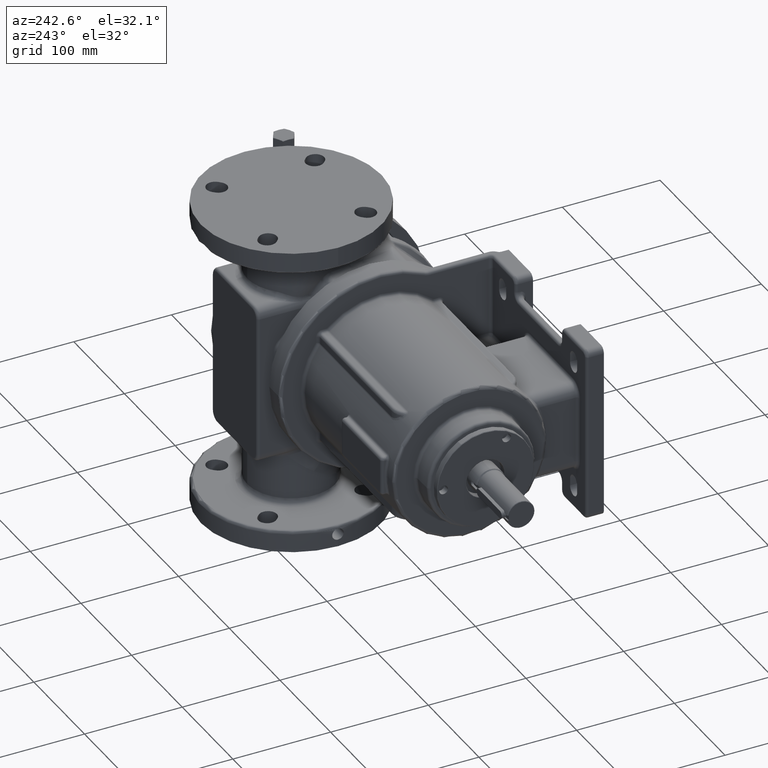
[diagram: clean part render]
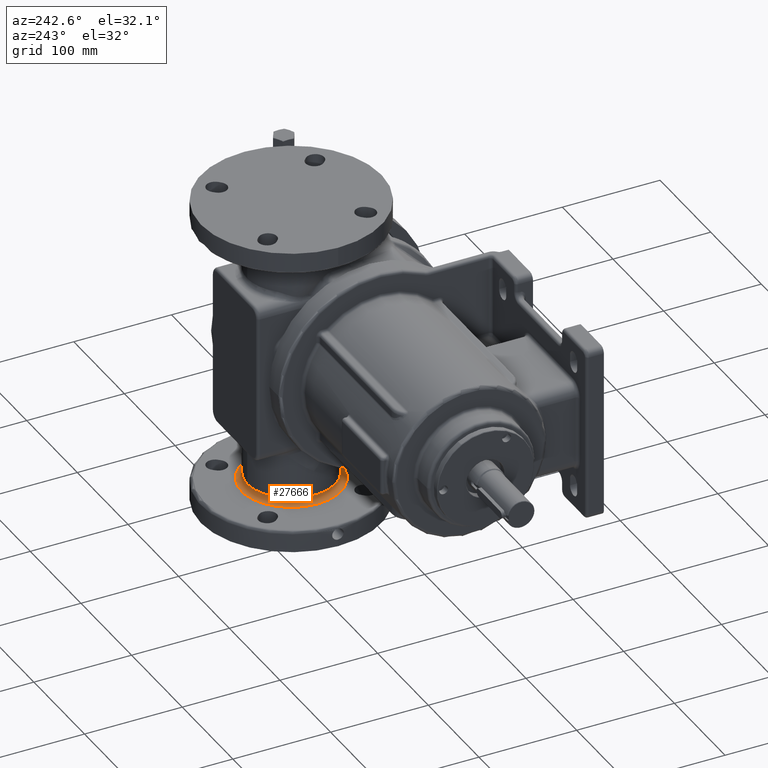
[diagram: same view with one face highlighted and labeled with its STEP entity id]
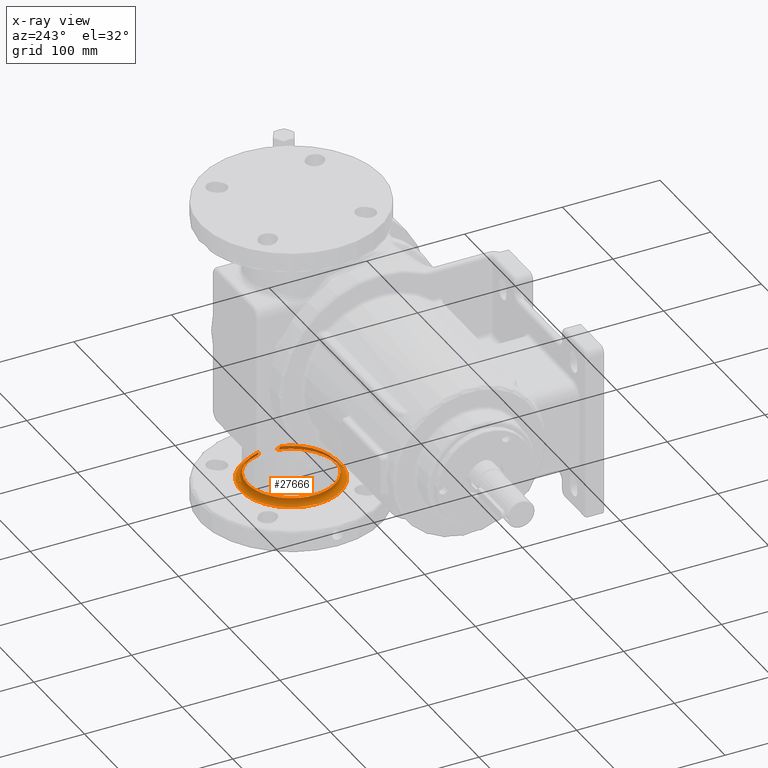
[diagram: x-ray of the same camera — body ghosted, the highlighted face saturated]
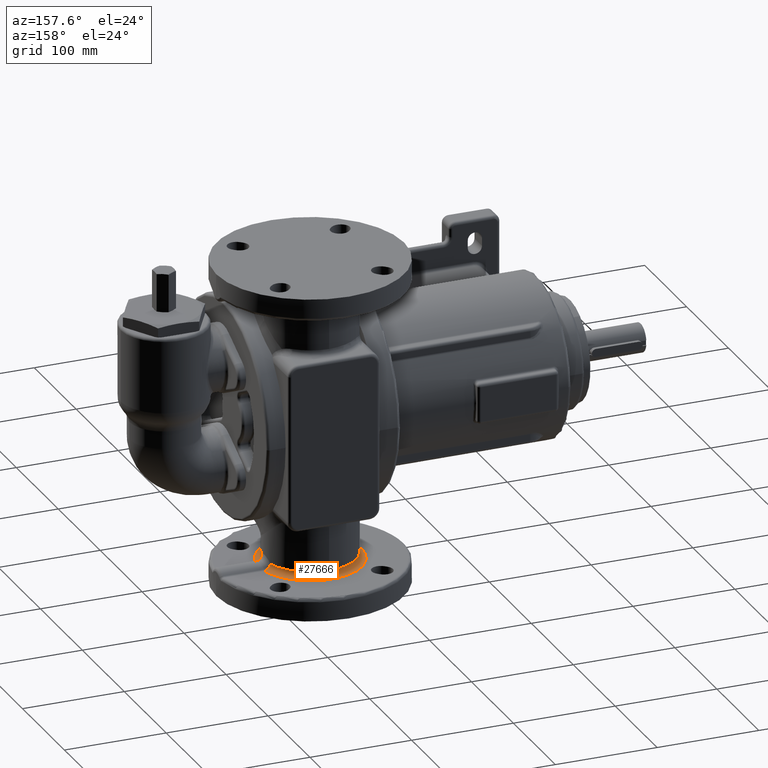
[diagram: same view with one face highlighted and labeled with its STEP entity id]
A machine part, auxiliary view. The second image highlights one B-rep face of the part: STEP entity #27666.
The next image is the same camera in x-ray: the body ghosted, the highlighted face saturated — about 14% of this face is hidden behind the body in this view.
A second angle (auxiliary view) of the same face is appended — the face is thin or edge-on in the first view.
In plain terms, the highlighted toroidal blend (fillet) surface has major radius 51 mm and minor (blend) radius 6 mm.
Its self-contained STEP definition (entity closure, byte-faithful):
#7389=CARTESIAN_POINT('',(5.75E1,5.5E1,-1.32E2));
#7390=DIRECTION('',(0.E0,0.E0,1.E0));
#7391=DIRECTION('',(0.E0,1.E0,0.E0));
#7392=AXIS2_PLACEMENT_3D('',#7389,#7390,#7391);
#7422=CARTESIAN_POINT('',(5.75E1,5.5E1,-1.38E2));
#7423=DIRECTION('',(0.E0,0.E0,-1.E0));
#7424=DIRECTION('',(9.756749180723E-1,-2.192223853638E-1,0.E0));
#7425=AXIS2_PLACEMENT_3D('',#7422,#7423,#7424);
#7548=CARTESIAN_POINT('',(1.061932992830E2,4.398203216310E1,-1.379027799623E2));
#7549=CARTESIAN_POINT('',(1.062627182263E2,4.396839121034E1,-1.379156678420E2));
#7550=CARTESIAN_POINT('',(1.064023265745E2,4.394222403452E1,-1.379389100157E2));
#7551=CARTESIAN_POINT('',(1.066140035961E2,4.390627064213E1,-1.379661385661E2));
#7552=CARTESIAN_POINT('',(1.068275472812E2,4.387373323175E1,-1.379856454731E2));
#7553=CARTESIAN_POINT('',(1.070427276856E2,4.384463151926E1,-1.379973843932E2));
#7554=CARTESIAN_POINT('',(1.071870689678E2,4.382759377144E1,-1.379999995492E2));
#7555=CARTESIAN_POINT('',(1.072594178540E2,4.381966546161E1,-1.379999998845E2));
#7729=CARTESIAN_POINT('',(1.072594181649E2,6.618033597942E1,-1.379999999395E2));
#7730=CARTESIAN_POINT('',(1.071870632168E2,6.617240589196E1,-1.379999996525E2));
#7731=CARTESIAN_POINT('',(1.070427124154E2,6.615536568869E1,-1.379973838963E2));
#7732=CARTESIAN_POINT('',(1.068275230448E2,6.612626347751E1,-1.379856439052E2));
#7733=CARTESIAN_POINT('',(1.066139793206E2,6.609372542627E1,-1.379661353823E2));
#7734=CARTESIAN_POINT('',(1.064023491122E2,6.605778026330E1,-1.379389134885E2));
#7735=CARTESIAN_POINT('',(1.062627233765E2,6.603160938309E1,-1.379156680074E2));
#7736=CARTESIAN_POINT('',(1.061933404925E2,6.601797562899E1,-1.379027876033E2));
#7780=CARTESIAN_POINT('',(1.061933404925E2,6.601797562899E1,-1.379027876033E2));
#7781=CARTESIAN_POINT('',(1.061132947112E2,6.600224710052E1,-1.378879276066E2));
#7782=CARTESIAN_POINT('',(1.059536265889E2,6.597162272904E1,-1.378548253291E2));
#7783=CARTESIAN_POINT('',(1.057156884023E2,6.592822365491E1,-1.377950673051E2));
#7784=CARTESIAN_POINT('',(1.054797544829E2,6.588739617604E1,-1.377252900961E2));
#7785=CARTESIAN_POINT('',(1.052461708444E2,6.584921023528E1,-1.376455722708E2));
#7786=CARTESIAN_POINT('',(1.050152984479E2,6.581368015801E1,-1.375559982714E2));
#7787=CARTESIAN_POINT('',(1.047875513572E2,6.578088227455E1,-1.374566902504E2));
#7788=CARTESIAN_POINT('',(1.045633658254E2,6.575082369029E1,-1.373477958358E2));
#7789=CARTESIAN_POINT('',(1.043431229901E2,6.572358071619E1,-1.372294654716E2));
#7790=CARTESIAN_POINT('',(1.041272053607E2,6.569914154999E1,-1.371018550499E2));
#7791=CARTESIAN_POINT('',(1.039160003594E2,6.567758079543E1,-1.369651515797E2));
#7792=CARTESIAN_POINT('',(1.037099103825E2,6.565887847249E1,-1.368195597832E2));
#7793=CARTESIAN_POINT('',(1.035093124679E2,6.564310622638E1,-1.366653042891E2));
#7794=CARTESIAN_POINT('',(1.033145891870E2,6.563023385900E1,-1.365026191555E2));
#7795=CARTESIAN_POINT('',(1.031261055073E2,6.562032753461E1,-1.363317662330E2));
#7796=CARTESIAN_POINT('',(1.029442333663E2,6.561334926558E1,-1.361530187184E2));
#7797=CARTESIAN_POINT('',(1.027693206083E2,6.560935869050E1,-1.359666764597E2));
#7798=CARTESIAN_POINT('',(1.026017181780E2,6.560831043702E1,-1.357730468518E2));
#7799=CARTESIAN_POINT('',(1.024417520346E2,6.561025662414E1,-1.355724664123E2));
#7800=CARTESIAN_POINT('',(1.022897504817E2,6.561514486694E1,-1.353652789339E2));
#7801=CARTESIAN_POINT('',(1.021460117242E2,6.562301890277E1,-1.351518551040E2));
#7802=CARTESIAN_POINT('',(1.020108320686E2,6.563381973502E1,-1.349325663163E2));
#7803=CARTESIAN_POINT('',(1.018844785871E2,6.564758279665E1,-1.347078149201E2));
#7804=CARTESIAN_POINT('',(1.017672191145E2,6.566424245379E1,-1.344780100344E2));
#7805=CARTESIAN_POINT('',(1.016592841745E2,6.568382226644E1,-1.342435822483E2));
#7806=CARTESIAN_POINT('',(1.015608963813E2,6.570625201848E1,-1.340049497907E2));
#7807=CARTESIAN_POINT('',(1.014722459475E2,6.573154959060E1,-1.337625619008E2));
#7808=CARTESIAN_POINT('',(1.013935225620E2,6.575963890164E1,-1.335168750211E2));
#7809=CARTESIAN_POINT('',(1.013248791341E2,6.579051167181E1,-1.332683647737E2));
#7810=CARTESIAN_POINT('',(1.012664599182E2,6.582408940084E1,-1.330175077647E2));
#7811=CARTESIAN_POINT('',(1.012183639882E2,6.586037882673E1,-1.327647957595E2));
#7812=CARTESIAN_POINT('',(1.011806896729E2,6.589927365307E1,-1.325106743284E2));
#7813=CARTESIAN_POINT('',(1.011534928418E2,6.594074944933E1,-1.322556245201E2));
#7814=CARTESIAN_POINT('',(1.011423801530E2,6.597009595730E1,-1.320851503292E2));
#7815=CARTESIAN_POINT('',(1.011385714870E2,6.598521963717E1,-1.319999448963E2));
#7817=CARTESIAN_POINT('',(1.011385733308E2,4.401478765545E1,-1.319999477205E2));
#7868=CARTESIAN_POINT('',(1.011385714870E2,6.598521963717E1,-1.319999448963E2));
#7870=CARTESIAN_POINT('',(5.75E1,5.5E1,-1.32E2));
#7871=DIRECTION('',(0.E0,0.E0,1.E0));
#7872=DIRECTION('',(0.E0,-1.E0,0.E0));
#7873=AXIS2_PLACEMENT_3D('',#7870,#7871,#7872);
#7903=CARTESIAN_POINT('',(5.75E1,5.5E1,-1.32E2));
#7904=DIRECTION('',(0.E0,0.E0,1.E0));
#7905=DIRECTION('',(9.697462613774E-1,2.441151133064E-1,0.E0));
#7906=AXIS2_PLACEMENT_3D('',#7903,#7904,#7905);
#15876=CARTESIAN_POINT('',(1.011385733308E2,4.401478765545E1,
-1.319999477205E2));
#15877=CARTESIAN_POINT('',(1.011423816420E2,4.402990965747E1,
-1.320851540814E2));
#15878=CARTESIAN_POINT('',(1.011534918319E2,4.405924627500E1,
-1.322556253257E2));
#15879=CARTESIAN_POINT('',(1.011806894082E2,4.410072500494E1,
-1.325106752226E2));
#15880=CARTESIAN_POINT('',(1.012183636882E2,4.413961930494E1,
-1.327647971005E2));
#15881=CARTESIAN_POINT('',(1.012664600068E2,4.417590915605E1,
-1.330175103602E2));
#15882=CARTESIAN_POINT('',(1.013248794356E2,4.420948698155E1,
-1.332683676028E2));
#15883=CARTESIAN_POINT('',(1.013935229384E2,4.424035984302E1,
-1.335168775545E2));
#15884=CARTESIAN_POINT('',(1.014722464863E2,4.426844932095E1,
-1.337625644567E2));
#15885=CARTESIAN_POINT('',(1.015608971849E2,4.429374706886E1,
-1.340049526143E2));
#15886=CARTESIAN_POINT('',(1.016592852326E2,4.431617703400E1,
-1.342435852128E2));
#15887=CARTESIAN_POINT('',(1.017672203910E2,4.433575704010E1,
-1.344780130361E2));
#15888=CARTESIAN_POINT('',(1.018844800882E2,4.435241691581E1,
-1.347078179429E2));
#15889=CARTESIAN_POINT('',(1.020108337987E2,4.436618019018E1,
-1.349325693545E2));
#15890=CARTESIAN_POINT('',(1.021460136712E2,4.437698120287E1,
-1.351518581355E2));
#15891=CARTESIAN_POINT('',(1.022897526223E2,4.438485536059E1,
-1.353652819337E2));
#15892=CARTESIAN_POINT('',(1.024417543605E2,4.438974367595E1,
-1.355724693768E2));
#15893=CARTESIAN_POINT('',(1.026017206831E2,4.439168987425E1,
-1.357730497819E2));
#15894=CARTESIAN_POINT('',(1.027693232770E2,4.439064159346E1,
-1.359666793378E2));
#15895=CARTESIAN_POINT('',(1.029442361924E2,4.438665096775E1,
-1.361530215359E2));
#15896=CARTESIAN_POINT('',(1.031261085036E2,4.437967262727E1,
-1.363317689986E2));
#15897=CARTESIAN_POINT('',(1.033145923666E2,4.436976622365E1,
-1.365026218707E2));
#15898=CARTESIAN_POINT('',(1.035093158049E2,4.435689376725E1,
-1.366653069225E2));
#15899=CARTESIAN_POINT('',(1.037099138582E2,4.434112143631E1,
-1.368195623136E2));
#15900=CARTESIAN_POINT('',(1.039160040759E2,4.432241901388E1,
-1.369651540731E2));
#15901=CARTESIAN_POINT('',(1.041272094199E2,4.430085815181E1,
-1.371018575462E2));
#15902=CARTESIAN_POINT('',(1.043431271039E2,4.427641890276E1,
-1.372294677717E2));
#15903=CARTESIAN_POINT('',(1.045633696121E2,4.424917590467E1,
-1.373477977596E2));
#15904=CARTESIAN_POINT('',(1.047875555292E2,4.421911720805E1,
-1.374566921781E2));
#15905=CARTESIAN_POINT('',(1.050153040570E2,4.418631905735E1,
-1.375560006156E2));
#15906=CARTESIAN_POINT('',(1.052461777109E2,4.415078868851E1,
-1.376455747296E2));
#15907=CARTESIAN_POINT('',(1.054797588489E2,4.411260311530E1,
-1.377252915522E2));
#15908=CARTESIAN_POINT('',(1.057156903121E2,4.407177590241E1,
-1.377950673726E2));
#15909=CARTESIAN_POINT('',(1.059535971460E2,4.402838283121E1,
-1.378548188371E2));
#15910=CARTESIAN_POINT('',(1.061132873813E2,4.399775417605E1,
-1.378879255796E2));
#15911=CARTESIAN_POINT('',(1.061932992830E2,4.398203216310E1,
-1.379027799623E2));
#17291=VERTEX_POINT('',#7817);
#17292=VERTEX_POINT('',#7868);
#17295=CARTESIAN_POINT('',(5.75E1,1.E1,-1.32E2));
#17296=VERTEX_POINT('',#17295);
#17297=CARTESIAN_POINT('',(5.75E1,1.E2,-1.32E2));
#17298=VERTEX_POINT('',#17297);
#17299=CARTESIAN_POINT('',(1.072594211556E2,6.618033988750E1,-1.38E2));
#17301=VERTEX_POINT('',#17299);
#17304=CARTESIAN_POINT('',(1.072594210998E2,4.381966011250E1,-1.38E2));
#17305=VERTEX_POINT('',#17304);
#17325=CARTESIAN_POINT('',(1.061933303033E2,6.601797367569E1,
-1.379027857845E2));
#17326=VERTEX_POINT('',#17325);
#17327=CARTESIAN_POINT('',(1.061933297312E2,4.398202642526E1,
-1.379027856704E2));
#17328=VERTEX_POINT('',#17327);
#27644=CARTESIAN_POINT('',(5.75E1,5.5E1,-1.32E2));
#27645=DIRECTION('',(0.E0,0.E0,1.E0));
#27646=DIRECTION('',(-1.826598912568E-3,9.999983317668E-1,0.E0));
#27647=AXIS2_PLACEMENT_3D('',#27644,#27645,#27646);
#27648=TOROIDAL_SURFACE('',#27647,5.099999999993E1,6.E0);
#27650=ORIENTED_EDGE('',*,*,#27649,.T.);
#27652=ORIENTED_EDGE('',*,*,#27651,.T.);
#27654=ORIENTED_EDGE('',*,*,#27653,.T.);
#27656=ORIENTED_EDGE('',*,*,#27655,.T.);
#27657=ORIENTED_EDGE('',*,*,#27627,.T.);
#27659=ORIENTED_EDGE('',*,*,#27658,.T.);
#27661=ORIENTED_EDGE('',*,*,#27660,.T.);
#27663=ORIENTED_EDGE('',*,*,#27662,.T.);
#27664=EDGE_LOOP('',(#27650,#27652,#27654,#27656,#27657,#27659,#27661,#27663));
#27665=FACE_OUTER_BOUND('',#27664,.F.);
#27666=ADVANCED_FACE('',(#27665),#27648,.F.);
#7393=CIRCLE('',#7392,4.5E1);
#7426=CIRCLE('',#7425,5.099999999993E1);
#7556=B_SPLINE_CURVE_WITH_KNOTS('',3,(#7548,#7549,#7550,#7551,#7552,#7553,#7554,
#7555),.UNSPECIFIED.,.F.,.F.,(4,1,1,1,1,4),(0.E0,2.E-1,4.E-1,6.E-1,8.E-1,1.E0),
.UNSPECIFIED.);
#7737=B_SPLINE_CURVE_WITH_KNOTS('',3,(#7729,#7730,#7731,#7732,#7733,#7734,#7735,
#7736),.UNSPECIFIED.,.F.,.F.,(4,1,1,1,1,4),(0.E0,2.E-1,4.E-1,6.E-1,8.E-1,1.E0),
.UNSPECIFIED.);
#7816=B_SPLINE_CURVE_WITH_KNOTS('',3,(#7780,#7781,#7782,#7783,#7784,#7785,#7786,
#7787,#7788,#7789,#7790,#7791,#7792,#7793,#7794,#7795,#7796,#7797,#7798,#7799,
#7800,#7801,#7802,#7803,#7804,#7805,#7806,#7807,#7808,#7809,#7810,#7811,#7812,
#7813,#7814,#7815),.UNSPECIFIED.,.F.,.F.,(4,1,1,1,1,1,1,1,1,1,1,1,1,1,1,1,1,1,1,
1,1,1,1,1,1,1,1,1,1,1,1,1,1,4),(0.E0,3.030303030303E-2,6.060606060606E-2,
9.090909090909E-2,1.212121212121E-1,1.515151515152E-1,1.818181818182E-1,
2.121212121212E-1,2.424242424242E-1,2.727272727273E-1,3.030303030303E-1,
3.333333333333E-1,3.636363636364E-1,3.939393939394E-1,4.242424242424E-1,
4.545454545455E-1,4.848484848485E-1,5.151515151515E-1,5.454545454545E-1,
5.757575757576E-1,6.060606060606E-1,6.363636363636E-1,6.666666666667E-1,
6.969696969697E-1,7.272727272727E-1,7.575757575758E-1,7.878787878788E-1,
8.181818181818E-1,8.484848484848E-1,8.787878787879E-1,9.090909090909E-1,
9.393939393939E-1,9.696969696970E-1,1.E0),.UNSPECIFIED.);
#7874=CIRCLE('',#7873,4.5E1);
#7907=CIRCLE('',#7906,4.5E1);
#15912=B_SPLINE_CURVE_WITH_KNOTS('',3,(#15876,#15877,#15878,#15879,#15880,
#15881,#15882,#15883,#15884,#15885,#15886,#15887,#15888,#15889,#15890,#15891,
#15892,#15893,#15894,#15895,#15896,#15897,#15898,#15899,#15900,#15901,#15902,
#15903,#15904,#15905,#15906,#15907,#15908,#15909,#15910,#15911),.UNSPECIFIED.,
.F.,.F.,(4,1,1,1,1,1,1,1,1,1,1,1,1,1,1,1,1,1,1,1,1,1,1,1,1,1,1,1,1,1,1,1,1,4),(
0.E0,3.030303030303E-2,6.060606060606E-2,9.090909090909E-2,1.212121212121E-1,
1.515151515152E-1,1.818181818182E-1,2.121212121212E-1,2.424242424242E-1,
2.727272727273E-1,3.030303030303E-1,3.333333333333E-1,3.636363636364E-1,
3.939393939394E-1,4.242424242424E-1,4.545454545455E-1,4.848484848485E-1,
5.151515151515E-1,5.454545454545E-1,5.757575757576E-1,6.060606060606E-1,
6.363636363636E-1,6.666666666667E-1,6.969696969697E-1,7.272727272727E-1,
7.575757575758E-1,7.878787878788E-1,8.181818181818E-1,8.484848484848E-1,
8.787878787879E-1,9.090909090909E-1,9.393939393939E-1,9.696969696970E-1,1.E0),
.UNSPECIFIED.);
#27627=EDGE_CURVE('',#17298,#17296,#7393,.T.);
#27649=EDGE_CURVE('',#17305,#17301,#7426,.T.);
#27651=EDGE_CURVE('',#17301,#17326,#7737,.T.);
#27653=EDGE_CURVE('',#17326,#17292,#7816,.T.);
#27655=EDGE_CURVE('',#17292,#17298,#7907,.T.);
#27658=EDGE_CURVE('',#17296,#17291,#7874,.T.);
#27660=EDGE_CURVE('',#17291,#17328,#15912,.T.);
#27662=EDGE_CURVE('',#17328,#17305,#7556,.T.);